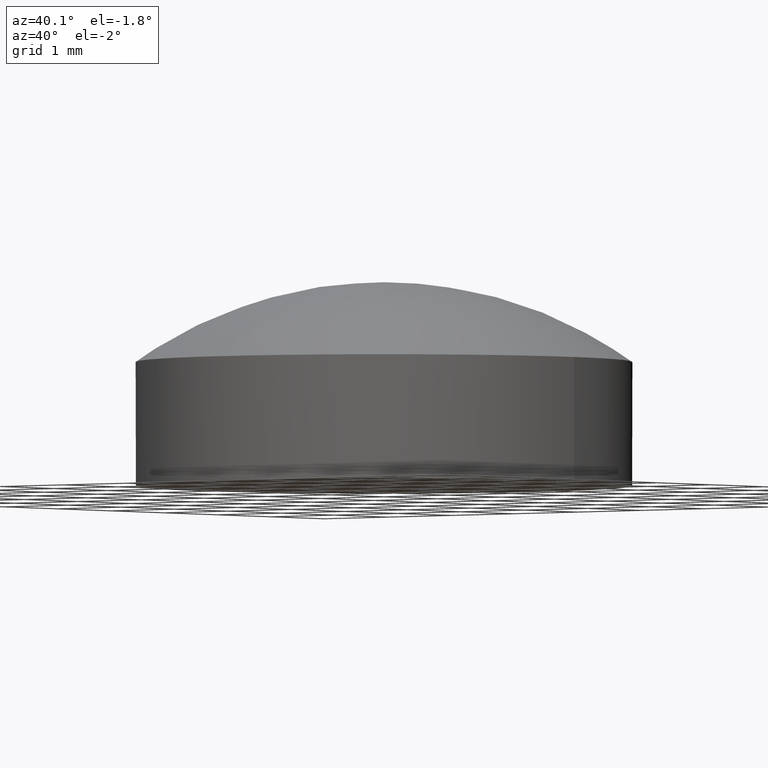
[diagram: clean part render]
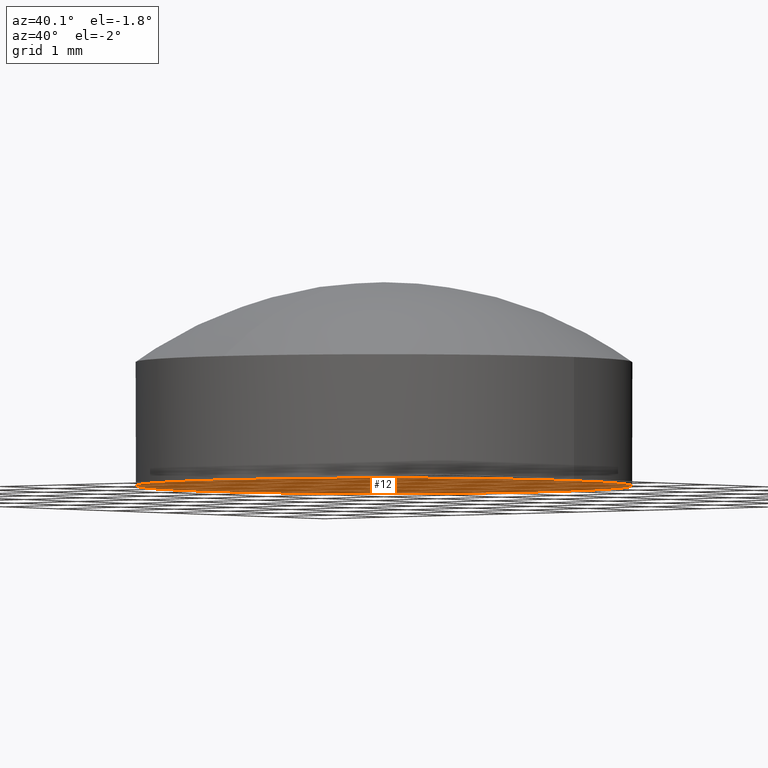
[diagram: same view with one face highlighted and labeled with its STEP entity id]
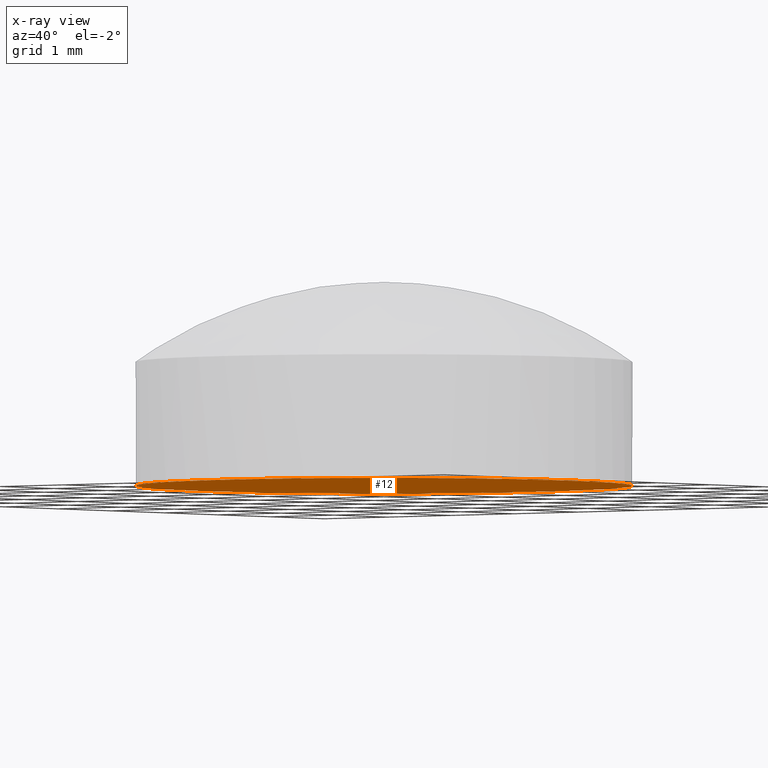
[diagram: x-ray of the same camera — body ghosted, the highlighted face saturated]
A machine part, auxiliary view. The second image highlights one B-rep face of the part: STEP entity #12.
The next image is the same camera in x-ray: the body ghosted, the highlighted face saturated — about 0% of this face is hidden behind the body in this view.
In plain terms, the highlighted planar face has unit normal (0, -0, 1).
Its self-contained STEP definition (entity closure, byte-faithful):
#1 = VERTEX_POINT ( 'NONE', #44 ) ;
#9 = EDGE_CURVE ( 'NONE', #1, #38, #80, .T. ) ;
#10 = EDGE_LOOP ( 'NONE', ( #63, #66 ) ) ;
#12 = ADVANCED_FACE ( 'NONE', ( #77 ), #32, .F. ) ;
#19 = EDGE_CURVE ( 'NONE', #38, #1, #60, .T. ) ;
#20 = CARTESIAN_POINT ( 'NONE',  ( 0.0000000000000000000, 4.518946688853733400E-016, -1.230000000000000000 ) ) ;
#21 = AXIS2_PLACEMENT_3D ( 'NONE', #20, #48, #47 ) ;
#32 = PLANE ( 'NONE',  #21 ) ;
#38 = VERTEX_POINT ( 'NONE', #201 ) ;
#44 = CARTESIAN_POINT ( 'NONE',  ( -2.999999999999999100, 3.673819061467130800E-016, -1.230000000000000200 ) ) ;
#47 = DIRECTION ( 'NONE',  ( 1.000000000000000000, 0.0000000000000000000, 0.0000000000000000000 ) ) ;
#48 = DIRECTION ( 'NONE',  ( 0.0000000000000000000, -0.0000000000000000000, 1.000000000000000000 ) ) ;
#51 = AXIS2_PLACEMENT_3D ( 'NONE', #58, #53, #56 ) ;
#53 = DIRECTION ( 'NONE',  ( -0.0000000000000000000, -0.0000000000000000000, 1.000000000000000000 ) ) ;
#56 = DIRECTION ( 'NONE',  ( 1.000000000000000000, 0.0000000000000000000, 0.0000000000000000000 ) ) ;
#58 = CARTESIAN_POINT ( 'NONE',  ( 0.0000000000000000000, 0.0000000000000000000, -1.230000000000000200 ) ) ;
#60 = CIRCLE ( 'NONE', #51, 2.999999999999999100 ) ;
#63 = ORIENTED_EDGE ( 'NONE', *, *, #19, .F. ) ;
#66 = ORIENTED_EDGE ( 'NONE', *, *, #9, .F. ) ;
#73 = DIRECTION ( 'NONE',  ( 1.000000000000000000, 0.0000000000000000000, 0.0000000000000000000 ) ) ;
#74 = DIRECTION ( 'NONE',  ( -0.0000000000000000000, -0.0000000000000000000, 1.000000000000000000 ) ) ;
#75 = CARTESIAN_POINT ( 'NONE',  ( 0.0000000000000000000, 0.0000000000000000000, -1.230000000000000200 ) ) ;
#76 = AXIS2_PLACEMENT_3D ( 'NONE', #75, #74, #73 ) ;
#77 = FACE_OUTER_BOUND ( 'NONE', #10, .T. ) ;
#80 = CIRCLE ( 'NONE', #76, 2.999999999999999100 ) ;
#201 = CARTESIAN_POINT ( 'NONE',  ( 2.999999999999999100, 0.0000000000000000000, -1.230000000000000200 ) ) ;